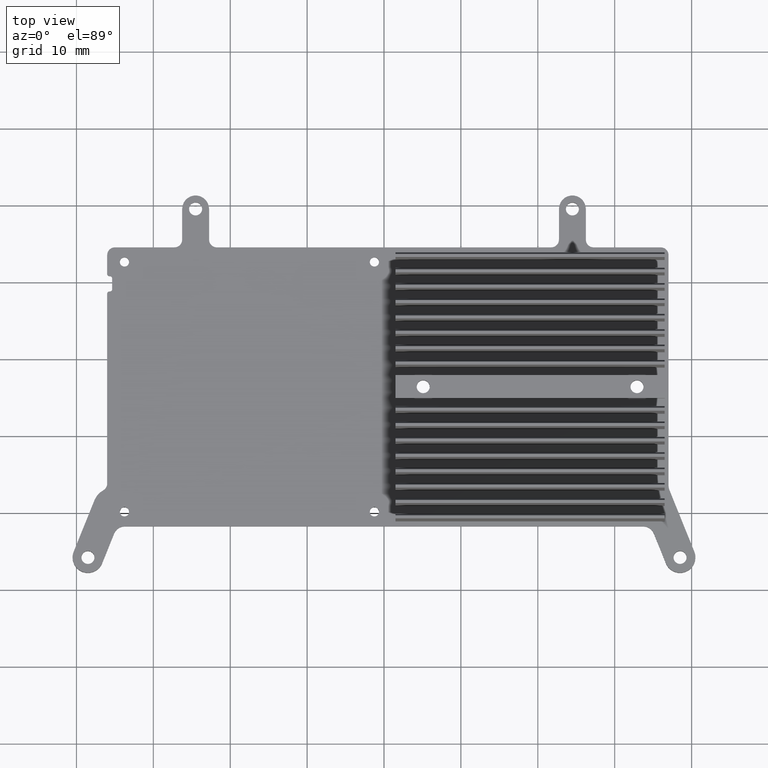
[diagram: clean part render]
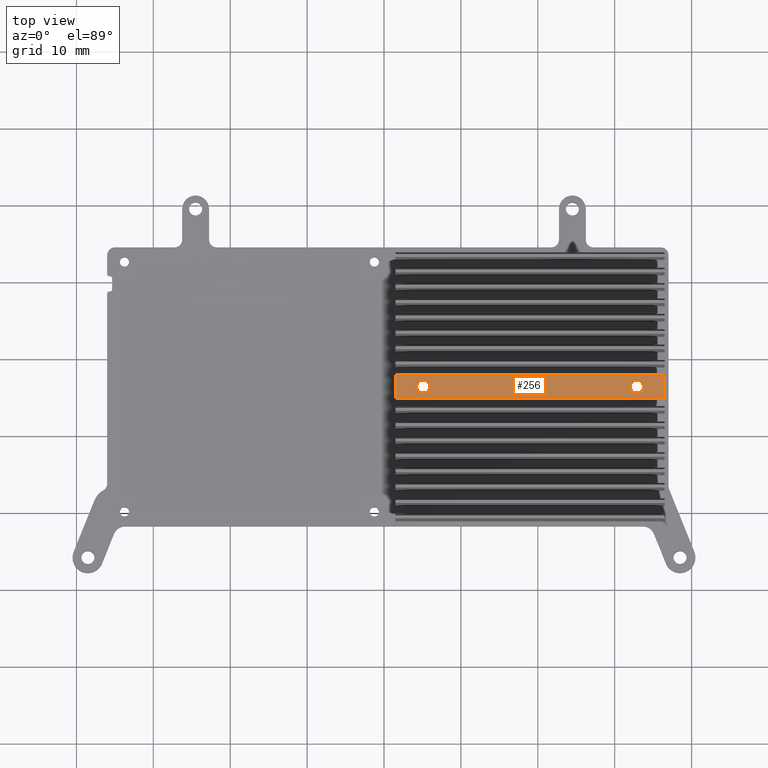
[diagram: same view with one face highlighted and labeled with its STEP entity id]
A machine part, top view. The second image highlights one B-rep face of the part: STEP entity #256.
In plain terms, the highlighted planar face has unit normal (0, 0, 1).
Its self-contained STEP definition (entity closure, byte-faithful):
#10 = DIRECTION ( 'NONE',  ( 0.0000000000000000000, -1.000000000000000000, -0.0000000000000000000 ) ) ;
#45 = CARTESIAN_POINT ( 'NONE',  ( 1.500599999999997700, -3.612280097539999800, -4.099999999999999600 ) ) ;
#82 = VERTEX_POINT ( 'NONE', #1675 ) ;
#137 = AXIS2_PLACEMENT_3D ( 'NONE', #1746, #4743, #2210 ) ;
#140 = LINE ( 'NONE', #1724, #3136 ) ;
#172 = EDGE_CURVE ( 'NONE', #1979, #878, #5041, .T. ) ;
#243 = AXIS2_PLACEMENT_3D ( 'NONE', #3442, #1765, #2741 ) ;
#256 = ADVANCED_FACE ( 'NONE', ( #4313, #1273, #2069 ), #3025, .T. ) ;
#302 = DIRECTION ( 'NONE',  ( 1.000000000000000000, 0.0000000000000000000, 0.0000000000000000000 ) ) ;
#578 = ORIENTED_EDGE ( 'NONE', *, *, #3240, .T. ) ;
#583 = ORIENTED_EDGE ( 'NONE', *, *, #3371, .T. ) ;
#595 = CIRCLE ( 'NONE', #4614, 0.8500000000000000900 ) ;
#620 = CIRCLE ( 'NONE', #1737, 0.8499999999999965400 ) ;
#641 = EDGE_CURVE ( 'NONE', #878, #1979, #595, .T. ) ;
#754 = CARTESIAN_POINT ( 'NONE',  ( 32.05000000000000400, -3.612280097539999800, -4.099999999999999600 ) ) ;
#763 = ORIENTED_EDGE ( 'NONE', *, *, #641, .T. ) ;
#878 = VERTEX_POINT ( 'NONE', #3946 ) ;
#930 = VECTOR ( 'NONE', #5388, 1000.000000000000000 ) ;
#931 = CARTESIAN_POINT ( 'NONE',  ( 5.949999999999999300, -3.612280097539999800, -4.099999999999999600 ) ) ;
#941 = CARTESIAN_POINT ( 'NONE',  ( 1.500599999999999900, -2.112280097539999800, -4.099999999999999600 ) ) ;
#1068 = LINE ( 'NONE', #2106, #930 ) ;
#1213 = CARTESIAN_POINT ( 'NONE',  ( 32.89999999999999900, -3.612280097539999800, -4.099999999999999600 ) ) ;
#1273 = FACE_BOUND ( 'NONE', #3041, .T. ) ;
#1485 = EDGE_LOOP ( 'NONE', ( #4336, #763 ) ) ;
#1578 = ORIENTED_EDGE ( 'NONE', *, *, #2860, .T. ) ;
#1675 = CARTESIAN_POINT ( 'NONE',  ( 1.500599999999998800, -5.112280097540001100, -4.099999999999999600 ) ) ;
#1712 = CARTESIAN_POINT ( 'NONE',  ( 33.74999999999999300, -3.612280097539999800, -4.099999999999999600 ) ) ;
#1724 = CARTESIAN_POINT ( 'NONE',  ( 49.00000000000000000, -2.112280097539999800, -4.099999999999999600 ) ) ;
#1737 = AXIS2_PLACEMENT_3D ( 'NONE', #4200, #5515, #2087 ) ;
#1746 = CARTESIAN_POINT ( 'NONE',  ( 5.099999999999999600, -3.612280097539999800, -4.099999999999999600 ) ) ;
#1765 = DIRECTION ( 'NONE',  ( 0.0000000000000000000, 0.0000000000000000000, 1.000000000000000000 ) ) ;
#1819 = LINE ( 'NONE', #45, #2083 ) ;
#1979 = VERTEX_POINT ( 'NONE', #931 ) ;
#2020 = DIRECTION ( 'NONE',  ( -0.0000000000000000000, -0.0000000000000000000, -1.000000000000000000 ) ) ;
#2069 = FACE_OUTER_BOUND ( 'NONE', #2573, .T. ) ;
#2083 = VECTOR ( 'NONE', #10, 1000.000000000000000 ) ;
#2087 = DIRECTION ( 'NONE',  ( 1.000000000000000000, 0.0000000000000000000, 0.0000000000000000000 ) ) ;
#2106 = CARTESIAN_POINT ( 'NONE',  ( 36.49940000000000100, -3.612280097539999800, -4.099999999999999600 ) ) ;
#2210 = DIRECTION ( 'NONE',  ( 1.000000000000000000, 0.0000000000000000000, 0.0000000000000000000 ) ) ;
#2415 = DIRECTION ( 'NONE',  ( 1.000000000000000000, 0.0000000000000000000, -0.0000000000000000000 ) ) ;
#2441 = VERTEX_POINT ( 'NONE', #1712 ) ;
#2460 = CIRCLE ( 'NONE', #2852, 0.8499999999999965400 ) ;
#2540 = VECTOR ( 'NONE', #2415, 1000.000000000000000 ) ;
#2572 = EDGE_CURVE ( 'NONE', #5357, #2441, #620, .T. ) ;
#2573 = EDGE_LOOP ( 'NONE', ( #583, #1578, #578, #2957 ) ) ;
#2667 = ORIENTED_EDGE ( 'NONE', *, *, #5232, .T. ) ;
#2712 = CARTESIAN_POINT ( 'NONE',  ( 36.49940000000000100, -5.112280097540001100, -4.099999999999999600 ) ) ;
#2741 = DIRECTION ( 'NONE',  ( 1.000000000000000000, 0.0000000000000000000, -0.0000000000000000000 ) ) ;
#2852 = AXIS2_PLACEMENT_3D ( 'NONE', #1213, #2020, #4170 ) ;
#2860 = EDGE_CURVE ( 'NONE', #4004, #82, #1819, .T. ) ;
#2957 = ORIENTED_EDGE ( 'NONE', *, *, #4452, .T. ) ;
#3025 = PLANE ( 'NONE',  #243 ) ;
#3041 = EDGE_LOOP ( 'NONE', ( #2667, #4992 ) ) ;
#3136 = VECTOR ( 'NONE', #4688, 1000.000000000000000 ) ;
#3237 = CARTESIAN_POINT ( 'NONE',  ( 36.49940000000000100, -2.112280097539999800, -4.099999999999999600 ) ) ;
#3240 = EDGE_CURVE ( 'NONE', #82, #4349, #4928, .T. ) ;
#3371 = EDGE_CURVE ( 'NONE', #5211, #4004, #140, .T. ) ;
#3442 = CARTESIAN_POINT ( 'NONE',  ( 49.00000000000000000, -3.612280097539999800, -4.099999999999999600 ) ) ;
#3779 = CARTESIAN_POINT ( 'NONE',  ( 5.099999999999999600, -3.612280097539999800, -4.099999999999999600 ) ) ;
#3946 = CARTESIAN_POINT ( 'NONE',  ( 4.249999999999999100, -3.612280097539999800, -4.099999999999999600 ) ) ;
#4004 = VERTEX_POINT ( 'NONE', #941 ) ;
#4170 = DIRECTION ( 'NONE',  ( 1.000000000000000000, 0.0000000000000000000, 0.0000000000000000000 ) ) ;
#4200 = CARTESIAN_POINT ( 'NONE',  ( 32.89999999999999900, -3.612280097539999800, -4.099999999999999600 ) ) ;
#4313 = FACE_BOUND ( 'NONE', #1485, .T. ) ;
#4336 = ORIENTED_EDGE ( 'NONE', *, *, #172, .T. ) ;
#4349 = VERTEX_POINT ( 'NONE', #2712 ) ;
#4452 = EDGE_CURVE ( 'NONE', #4349, #5211, #1068, .T. ) ;
#4571 = CARTESIAN_POINT ( 'NONE',  ( 49.00000000000000000, -5.112280097540001100, -4.099999999999999600 ) ) ;
#4614 = AXIS2_PLACEMENT_3D ( 'NONE', #3779, #5486, #302 ) ;
#4688 = DIRECTION ( 'NONE',  ( -1.000000000000000000, -0.0000000000000000000, 0.0000000000000000000 ) ) ;
#4743 = DIRECTION ( 'NONE',  ( -0.0000000000000000000, -0.0000000000000000000, -1.000000000000000000 ) ) ;
#4928 = LINE ( 'NONE', #4571, #2540 ) ;
#4992 = ORIENTED_EDGE ( 'NONE', *, *, #2572, .T. ) ;
#5041 = CIRCLE ( 'NONE', #137, 0.8500000000000000900 ) ;
#5211 = VERTEX_POINT ( 'NONE', #3237 ) ;
#5232 = EDGE_CURVE ( 'NONE', #2441, #5357, #2460, .T. ) ;
#5357 = VERTEX_POINT ( 'NONE', #754 ) ;
#5388 = DIRECTION ( 'NONE',  ( -0.0000000000000000000, 1.000000000000000000, 0.0000000000000000000 ) ) ;
#5486 = DIRECTION ( 'NONE',  ( -0.0000000000000000000, -0.0000000000000000000, -1.000000000000000000 ) ) ;
#5515 = DIRECTION ( 'NONE',  ( -0.0000000000000000000, -0.0000000000000000000, -1.000000000000000000 ) ) ;